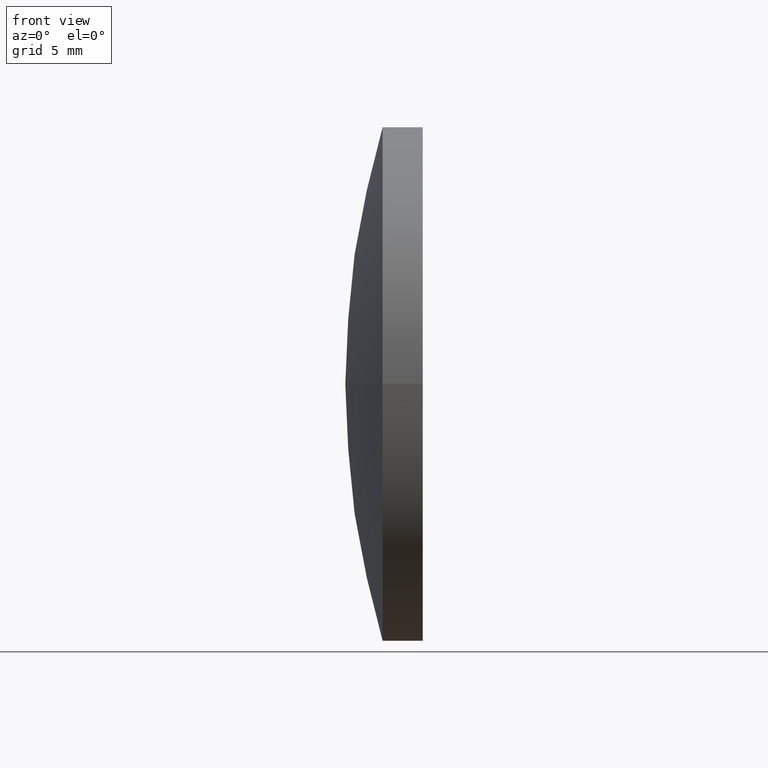
[diagram: clean part render]
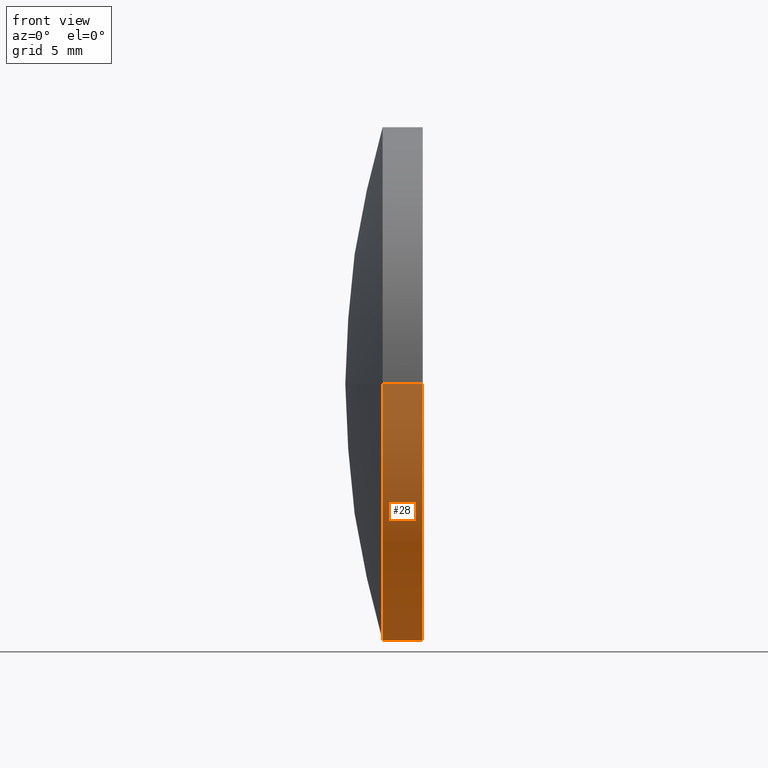
[diagram: same view with one face highlighted and labeled with its STEP entity id]
A machine part, front view. The second image highlights one B-rep face of the part: STEP entity #28.
In plain terms, the highlighted cylindrical surface (partial cylindrical patch) has radius 19.025 mm, axis along (-1, -0, -0).
Its self-contained STEP definition (entity closure, byte-faithful):
#2 = EDGE_CURVE ( 'NONE', #31, #136, #70, .T. ) ;
#9 = CARTESIAN_POINT ( 'NONE',  ( 125.6133060406054900, 46.19184047094029200, -2.329890535377837100E-015 ) ) ;
#10 = CARTESIAN_POINT ( 'NONE',  ( 125.6133060406054900, 65.21684047094032600, 0.0000000000000000000 ) ) ;
#12 = DIRECTION ( 'NONE',  ( -1.000000000000000000, -6.937607244762875000E-016, -0.0000000000000000000 ) ) ;
#19 = AXIS2_PLACEMENT_3D ( 'NONE', #22, #155, #50 ) ;
#20 = DIRECTION ( 'NONE',  ( 7.294500818824949000E-016, -1.000000000000000000, 0.0000000000000000000 ) ) ;
#22 = CARTESIAN_POINT ( 'NONE',  ( 128.5750569386001700, 65.21684047094034000, 0.0000000000000000000 ) ) ;
#24 = ORIENTED_EDGE ( 'NONE', *, *, #176, .F. ) ;
#28 = ADVANCED_FACE ( 'NONE', ( #34 ), #103, .T. ) ;
#31 = VERTEX_POINT ( 'NONE', #87 ) ;
#34 = FACE_OUTER_BOUND ( 'NONE', #186, .T. ) ;
#42 = DIRECTION ( 'NONE',  ( -1.000000000000000000, -6.937607244762875000E-016, -0.0000000000000000000 ) ) ;
#43 = EDGE_CURVE ( 'NONE', #180, #139, #104, .T. ) ;
#45 = CARTESIAN_POINT ( 'NONE',  ( 128.5750569386001700, 84.24184047094037500, 0.0000000000000000000 ) ) ;
#49 = DIRECTION ( 'NONE',  ( 0.0000000000000000000, -1.000000000000000000, 0.0000000000000000000 ) ) ;
#50 = DIRECTION ( 'NONE',  ( 0.0000000000000000000, -1.000000000000000000, 0.0000000000000000000 ) ) ;
#52 = CARTESIAN_POINT ( 'NONE',  ( 115.9444912979631700, 65.21684047094032600, 0.0000000000000000000 ) ) ;
#54 = CARTESIAN_POINT ( 'NONE',  ( 115.9444912979631800, 46.19184047094034200, 0.0000000000000000000 ) ) ;
#57 = VECTOR ( 'NONE', #12, 1000.000000000000000 ) ;
#58 = AXIS2_PLACEMENT_3D ( 'NONE', #10, #68, #49 ) ;
#62 = CARTESIAN_POINT ( 'NONE',  ( 115.9444912979631500, 84.24184047094031800, 2.329890535377837500E-015 ) ) ;
#65 = AXIS2_PLACEMENT_3D ( 'NONE', #52, #167, #20 ) ;
#68 = DIRECTION ( 'NONE',  ( -1.000000000000000000, -6.937607244762875000E-016, -0.0000000000000000000 ) ) ;
#70 = CIRCLE ( 'NONE', #58, 19.02499999999998100 ) ;
#73 = ORIENTED_EDGE ( 'NONE', *, *, #2, .F. ) ;
#83 = LINE ( 'NONE', #62, #112 ) ;
#87 = CARTESIAN_POINT ( 'NONE',  ( 125.6133060406054900, 84.24184047094030300, 0.0000000000000000000 ) ) ;
#93 = CARTESIAN_POINT ( 'NONE',  ( 128.5750569386001700, 46.19184047094012200, -2.329890535377843500E-015 ) ) ;
#103 = CYLINDRICAL_SURFACE ( 'NONE', #65, 19.02499999999998800 ) ;
#104 = CIRCLE ( 'NONE', #19, 19.02499999999998800 ) ;
#108 = ORIENTED_EDGE ( 'NONE', *, *, #43, .T. ) ;
#112 = VECTOR ( 'NONE', #42, 1000.000000000000000 ) ;
#116 = EDGE_CURVE ( 'NONE', #139, #136, #135, .T. ) ;
#126 = ORIENTED_EDGE ( 'NONE', *, *, #116, .T. ) ;
#135 = LINE ( 'NONE', #54, #57 ) ;
#136 = VERTEX_POINT ( 'NONE', #9 ) ;
#139 = VERTEX_POINT ( 'NONE', #93 ) ;
#155 = DIRECTION ( 'NONE',  ( -1.000000000000000000, -6.937607244762875000E-016, -0.0000000000000000000 ) ) ;
#167 = DIRECTION ( 'NONE',  ( -1.000000000000000000, -6.937607244762875000E-016, -0.0000000000000000000 ) ) ;
#176 = EDGE_CURVE ( 'NONE', #180, #31, #83, .T. ) ;
#180 = VERTEX_POINT ( 'NONE', #45 ) ;
#186 = EDGE_LOOP ( 'NONE', ( #24, #108, #126, #73 ) ) ;